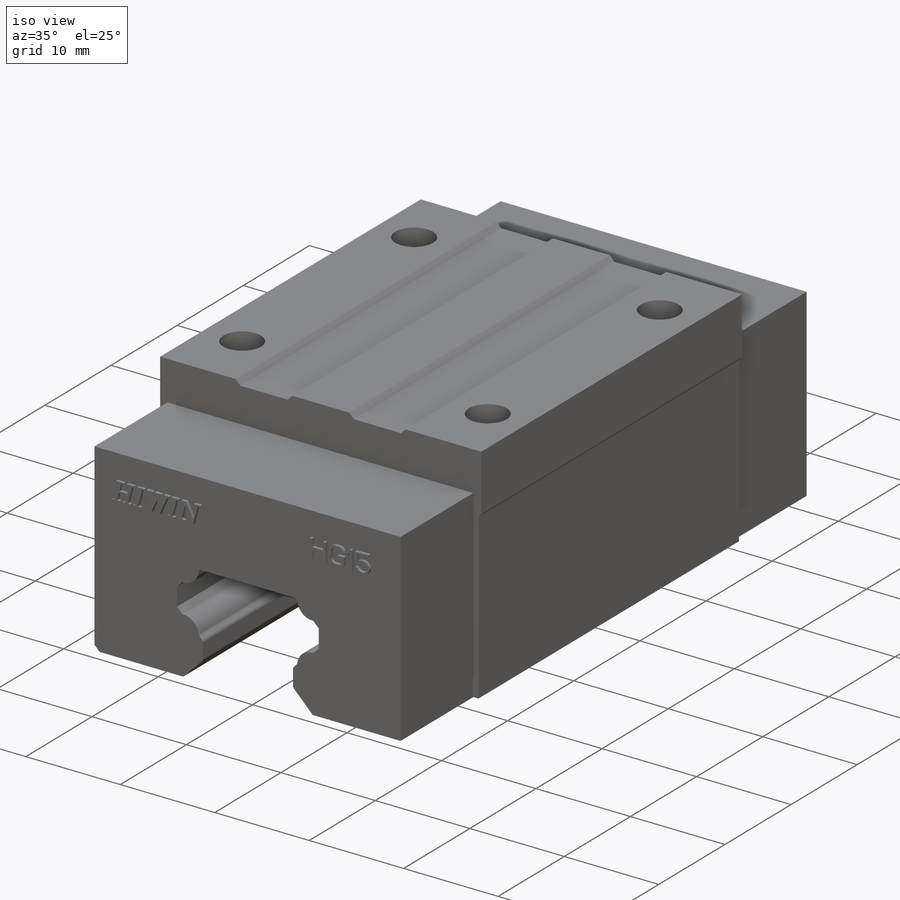
[diagram: iso view]
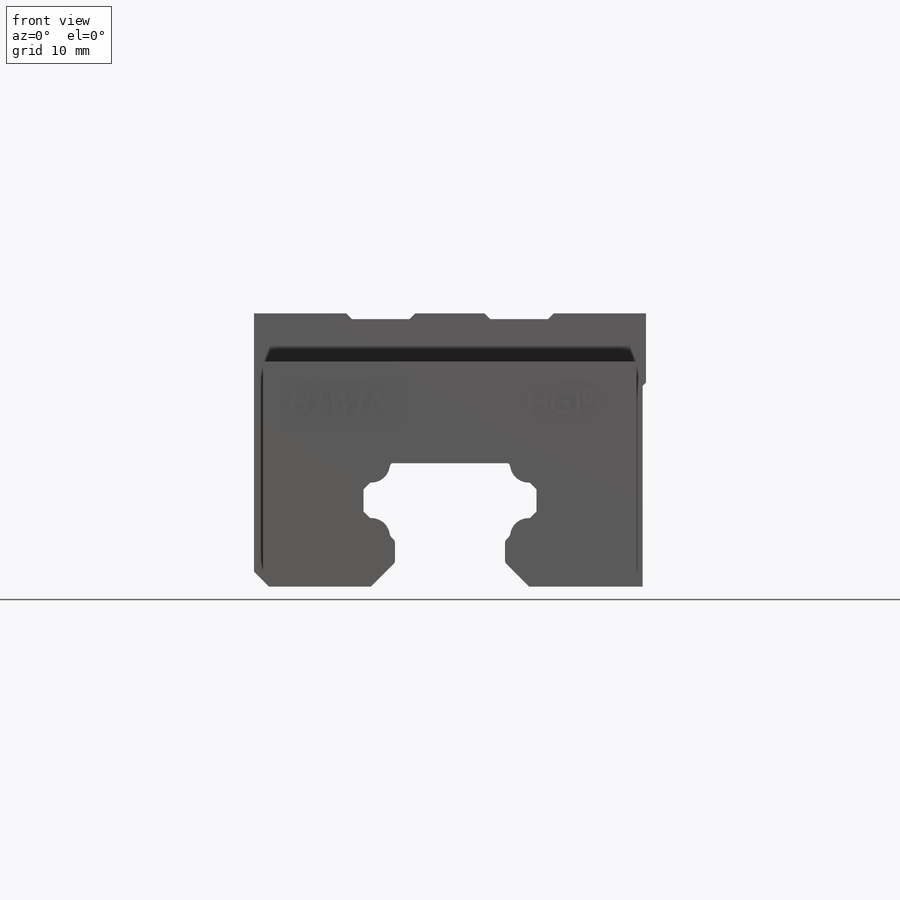
[diagram: front view]
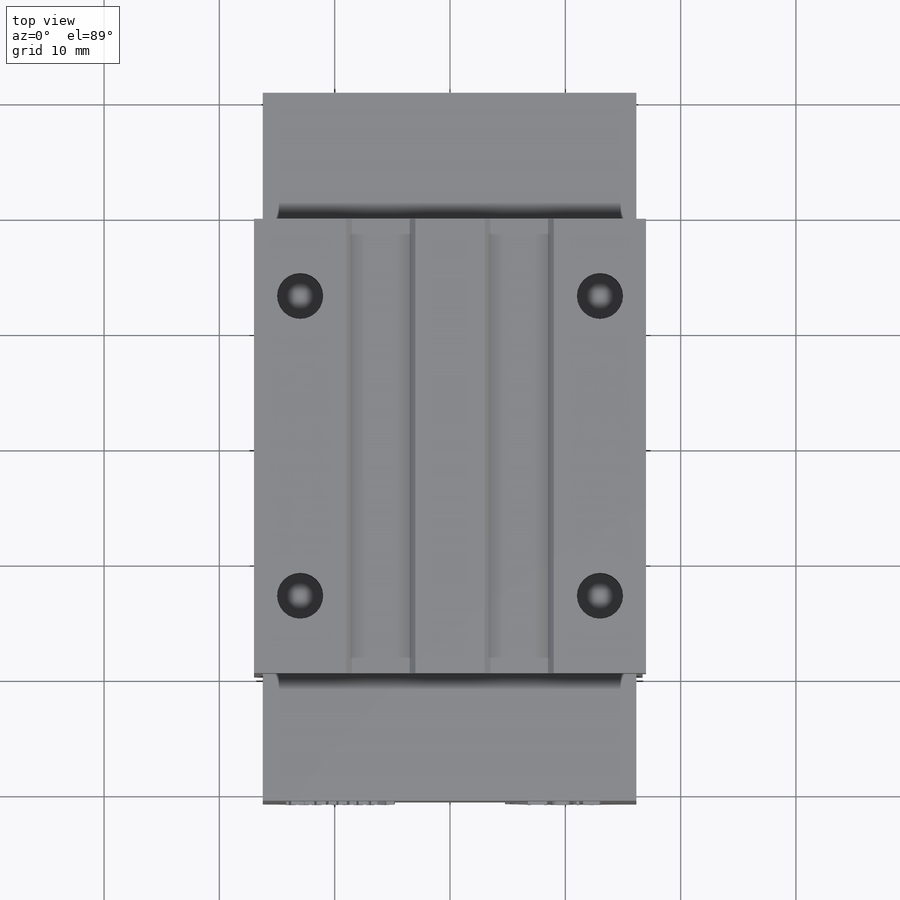
[diagram: top view]
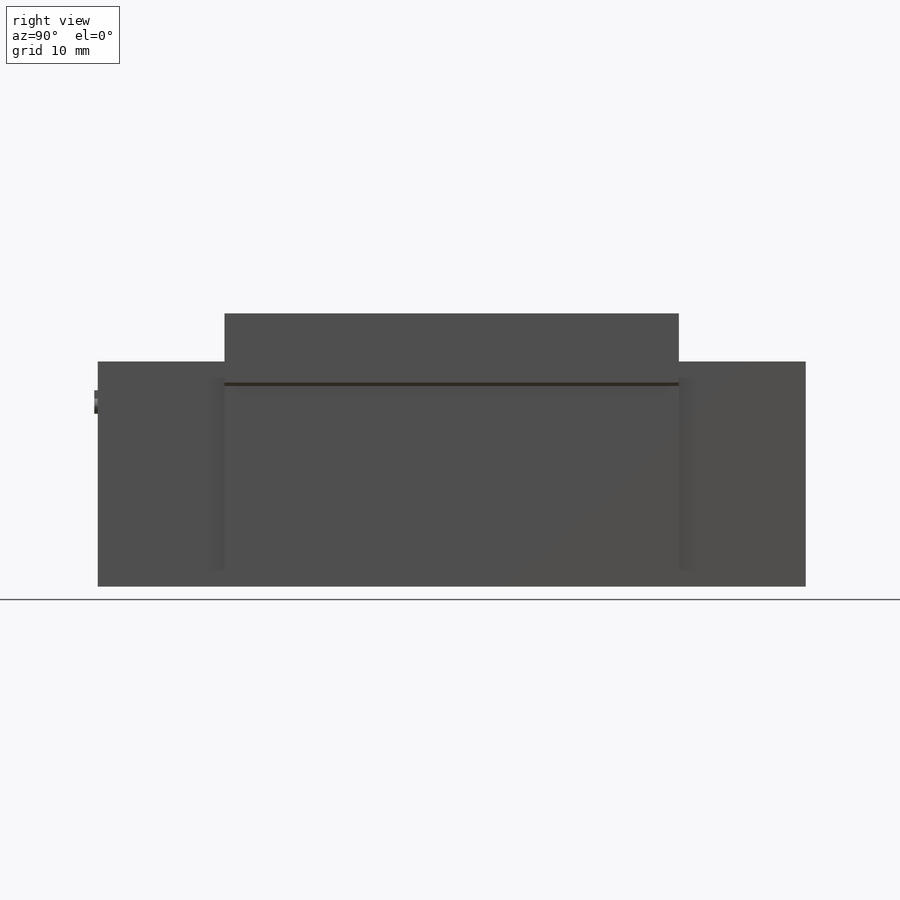
[diagram: right view]
SOLIDWORKS PART (.sldprt)
format: sldprt  version: not decoded by parser v0  size: 1,252,352 bytes
history: native  units: mm
features: chamfer x35, sketch x18, extrude x12, plane x5, cut_extrude x4, fillet x2, material x1, hole x1 (+7 scaffold rows collapsed)
feature tree (85):
  scaffold x7  (default folders/planes/origin — collapsed)
  material  "Материал <не указан>"
  plane  "Спереди"
  plane  "Сверху"
  plane  "Справа"
  plane  "Плоскость4"
  sketch  "Эскиз1"
  extrude  "Бобышка-Вытянуть1"  Depth=23.7mm
  sketch  "Эскиз2"
  cut_extrude  "Вырез-Вытянуть1"  Depth=39.4mm
  sketch  "Эскиз3"
  cut_extrude  "Вырез-Вытянуть2"  Depth=39.4mm
  sketch  "Эскиз4"
  extrude  "Бобышка-Вытянуть2"  Depth=11mm
  sketch  "Эскиз5"
  extrude  "Бобышка-Вытянуть3"  Depth=11mm
  sketch  "Эскиз6"
  cut_extrude  "Вырез-Вытянуть3"  Depth=61.4mm
  sketch  "Эскиз7"
  cut_extrude  "Вырез-Вытянуть4"  Depth=39.4mm
  plane  "Плоскость5"
  sketch  "Эскиз8"
  extrude  "Бобышка-Вытянуть4"  Depth=0.3mm
  sketch  "Эскиз9"
  extrude  "Бобышка-Вытянуть5"  Depth=0.3mm
  sketch  "Эскиз10"
  extrude  "Бобышка-Вытянуть6"  Depth=0.3mm
  sketch  "Эскиз11"
  extrude  "Бобышка-Вытянуть7"  Depth=0.3mm
  sketch  "Эскиз12"
  extrude  "Бобышка-Вытянуть8"  Depth=0.3mm
  sketch  "Эскиз13"
  extrude  "Бобышка-Вытянуть9"  Depth=0.3mm
  sketch  "Эскиз14"
  extrude  "Бобышка-Вытянуть10"  Depth=0.3mm
  sketch  "Эскиз15"
  extrude  "Бобышка-Вытянуть11"  Depth=0.3mm
  sketch  "Эскиз16"
  extrude  "Бобышка-Вытянуть12"  Depth=0.3mm
  hole  "Диаметр отверстия Ø4.0 (4)1"  [1 undecoded]
  sketch  "Эскиз18"
  sketch  "Эскиз17"  dims[hole-wizard template sketch: 46 standard entries collapsed; hole parameters kept: c15.Диаметр отверстия=4.0mm c15.Глубина отверстия=5.0mm c15.D3=~14.816244mm c15.Угол заточки сверла=180.0deg]
  chamfer  "Фаска2"  Distance=0.090019mm Angle=22.20884deg
  chamfer  "Фаска3"  Distance=0.138889mm Angle=11.544164deg
  chamfer  "Фаска4"  Distance=0.081445mm Angle=19.954337deg
  fillet  "Скругление1"  Radius=0.035916mm
  chamfer  "Фаска5"  Distance=0.111111mm Angle=14.322731deg
  chamfer  "Фаска6"  Distance=0.719992mm Angle=45deg
  chamfer  "Фаска7"  Distance=0.719992mm Angle=45deg
  chamfer  "Фаска8"  Distance=1.3mm Angle=45deg
  chamfer  "Фаска9"  Distance=0.081445mm Angle=19.954364deg
  chamfer  "Фаска10"  Distance=0.091401mm Angle=21.388545deg
  chamfer  "Фаска11"  Distance=0.011675mm Angle=67.536836deg
  chamfer  "Фаска12"  Distance=0.089333mm Angle=18.311346deg
  chamfer  "Фаска13"  Distance=0.067685mm Angle=29.665328deg
  chamfer  "Фаска14"  Distance=0.025874mm Angle=7.235373deg
  chamfer  "Фаска15"  Distance=0.002956mm Angle=58.099466deg
  chamfer  "Фаска16"  Distance=0.005703mm Angle=53.130691deg
  chamfer  "Фаска17"  Distance=0.014667mm Angle=14.931423deg
  chamfer  "Фаска18"  Distance=0.009236mm Angle=42.492863deg
  chamfer  "Фаска19"  Distance=0.006246mm Angle=65.081689deg
  chamfer  "Фаска20"  Distance=0.044762mm Angle=18.076238deg
  chamfer  "Фаска21"  Distance=0.008315mm Angle=46.203063deg
  chamfer  "Фаска22"  Distance=0.022061mm Angle=13.105683deg
  chamfer  "Фаска23"  Distance=0.011868mm Angle=52.953298deg
  chamfer  "Фаска24"  Distance=0.002956mm Angle=58.099891deg
  chamfer  "Фаска25"  Distance=0.027154mm Angle=34.294382deg
  chamfer  "Фаска26"  Distance=0.089333mm Angle=18.552531deg
  chamfer  "Фаска27"  Distance=0.003515mm Angle=74.74493deg
  chamfer  "Фаска28"  Distance=0.004328mm Angle=63.434786deg
  chamfer  "Фаска29"  Distance=0.132291mm Angle=14.904082deg
  chamfer  "Фаска30"  Distance=0.050407mm Angle=37.674819deg
  chamfer  "Фаска31"  Distance=0.106318mm Angle=15.506406deg
  chamfer  "Фаска32"  Distance=0.106317mm Angle=15.506454deg
  chamfer  "Фаска33"  Distance=0.089334mm Angle=18.552458deg
  chamfer  "Фаска34"  Distance=0.138889mm Angle=11.544191deg
  chamfer  "Фаска35"  Distance=0.108404mm Angle=15.005366deg
  chamfer  "Фаска36"  Distance=0.127659mm Angle=13.755064deg
  fillet  "Скругление2"  Radius=0.4mm
decode coverage: 54 of 72 modeling features carry decoded parameters
note: ~ marks probable driven/reference dimensions
note: 1 parameter value undecoded
note: suppression state not decoded; provenance and decode notes live in map.json
